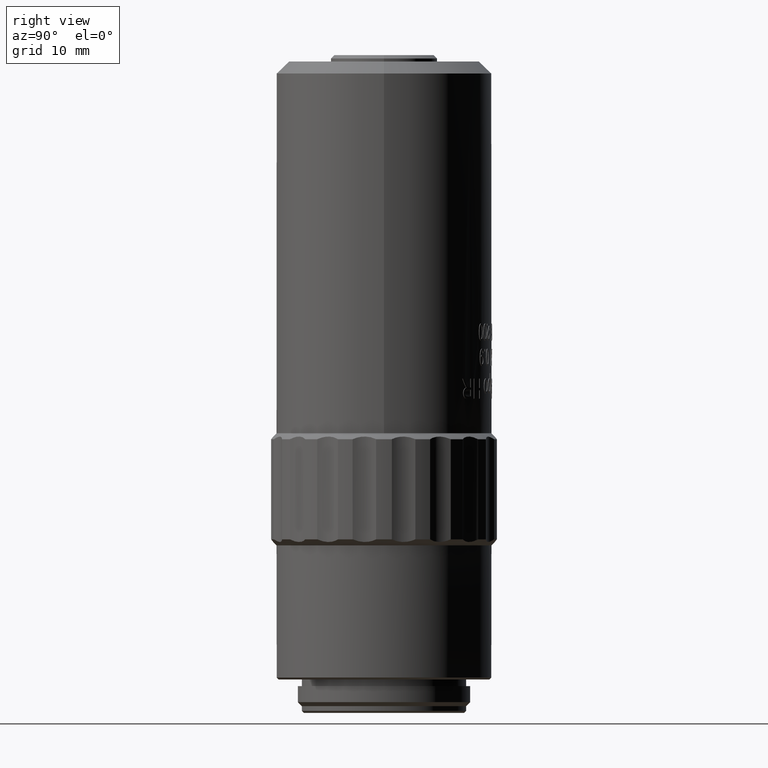
[diagram: clean part render]
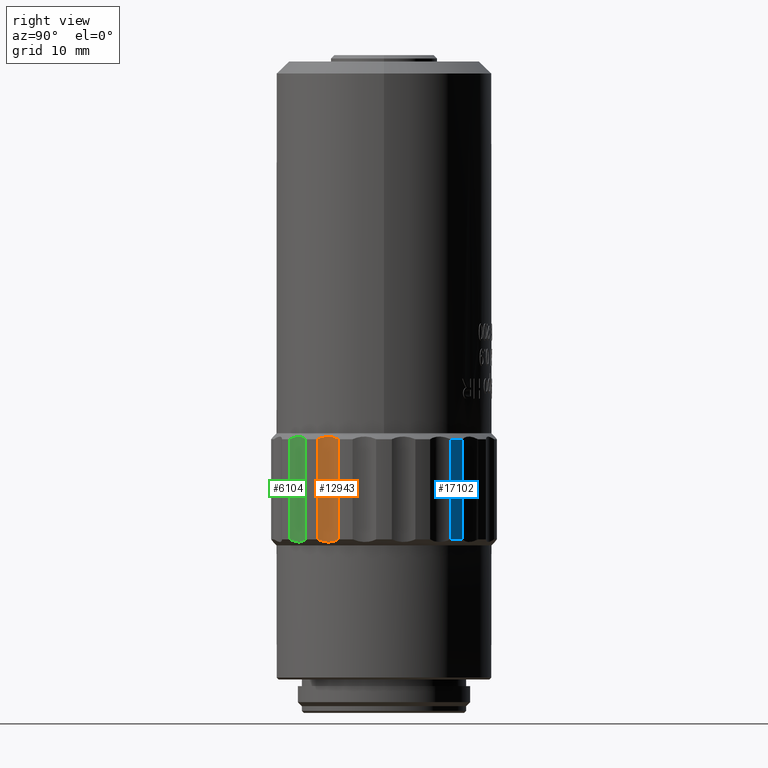
[diagram: same view with three faces highlighted in distinct colors, each labeled with its STEP entity id]
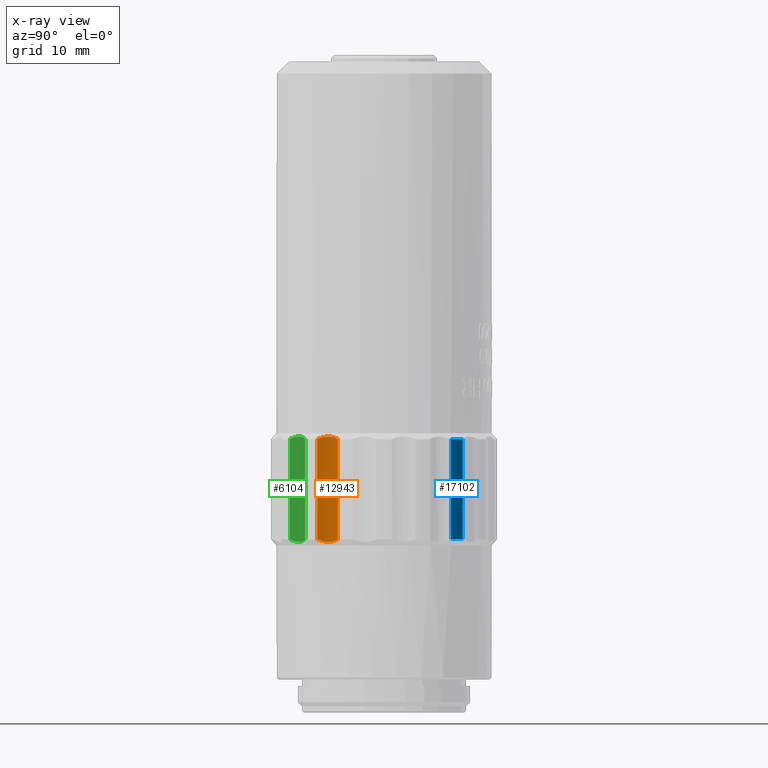
[diagram: x-ray of the same camera — body ghosted, the three highlighted faces saturated]
A machine part, right view with three faces highlighted in distinct colors.
The next image is the same camera in x-ray (body ghosted, the three faces saturated) — at least one of them is partly hidden behind the body in this view.
Their STEP definitions:

[orange] entity #12943 — the highlighted cylindrical surface (edge-blend (fillet) strip) has radius 5.4 mm, axis along (-0, 0, 1).
#824 = CARTESIAN_POINT ( 'NONE',  ( 19.05255888325774900, -10.99999999999982200, 21.34999999999996600 ) ) ;
#1400 = CARTESIAN_POINT ( 'NONE',  ( 14.53853958338843100, -8.032198147968669500, 41.39092293361600400 ) ) ;
#1597 = EDGE_CURVE ( 'NONE', #29060, #6802, #16267, .T. ) ;
#3730 = CARTESIAN_POINT ( 'NONE',  ( 13.87611108463110200, -9.432240277600202600, 25.77572455382300000 ) ) ;
#4149 = CARTESIAN_POINT ( 'NONE',  ( 14.22132855150395200, -8.567687747968626900, 41.40016476786554000 ) ) ;
#4189 = EDGE_CURVE ( 'NONE', #29060, #22720, #29690, .T. ) ;
#4195 = CARTESIAN_POINT ( 'NONE',  ( 14.29716043904604900, -8.436717341132732500, 25.60008324582645400 ) ) ;
#4993 = EDGE_CURVE ( 'NONE', #20641, #22720, #26941, .T. ) ;
#5141 = CARTESIAN_POINT ( 'NONE',  ( 13.74534270300631200, -10.00327716185606700, 40.99999999999999300 ) ) ;
#6802 = VERTEX_POINT ( 'NONE', #5141 ) ;
#8037 = CARTESIAN_POINT ( 'NONE',  ( 15.53576349476733600, -6.902177383598211900, 40.99999999999999300 ) ) ;
#8082 = CARTESIAN_POINT ( 'NONE',  ( 15.53576349476733600, -6.902177383598209200, 59.94999999999998200 ) ) ;
#9334 = CARTESIAN_POINT ( 'NONE',  ( 15.10404956711057200, -7.303743748790553900, 25.77464448674618000 ) ) ;
#10442 = DIRECTION ( 'NONE',  ( -0.0000000000000000000, 0.0000000000000000000, 1.000000000000000000 ) ) ;
#10860 = DIRECTION ( 'NONE',  ( 0.0000000000000000000, -0.0000000000000000000, -1.000000000000000000 ) ) ;
#11537 = ORIENTED_EDGE ( 'NONE', *, *, #4189, .T. ) ;
#12010 = CARTESIAN_POINT ( 'NONE',  ( 15.53576349476733600, -6.902177383598209200, 25.99999999999999600 ) ) ;
#12119 = EDGE_CURVE ( 'NONE', #20641, #6802, #34086, .T. ) ;
#12204 = CARTESIAN_POINT ( 'NONE',  ( 14.81237199277138600, -7.652734590218446300, 41.32821123978749300 ) ) ;
#12943 = ADVANCED_FACE ( 'NONE', ( #32866 ), #21685, .F. ) ;
#14256 = AXIS2_PLACEMENT_3D ( 'NONE', #824, #17541, #33872 ) ;
#14813 = CARTESIAN_POINT ( 'NONE',  ( 14.53049951718564100, -8.032187927182796700, 25.59983523213446300 ) ) ;
#14999 = CARTESIAN_POINT ( 'NONE',  ( 14.71694644180612200, -7.777162301628694200, 41.35521502908601800 ) ) ;
#16267 = LINE ( 'NONE', #21386, #29588 ) ;
#16657 = VECTOR ( 'NONE', #10860, 1000.000000000000000 ) ;
#17541 = DIRECTION ( 'NONE',  ( -0.0000000000000000000, 0.0000000000000000000, 1.000000000000000000 ) ) ;
#17764 = EDGE_LOOP ( 'NONE', ( #11537, #21959, #19623, #31390 ) ) ;
#17869 = CARTESIAN_POINT ( 'NONE',  ( 15.53576349476733600, -6.902177383598211900, 40.99999999999999300 ) ) ;
#19273 = CARTESIAN_POINT ( 'NONE',  ( 13.74534270300631200, -10.00327716185606700, 25.99999999999999600 ) ) ;
#19623 = ORIENTED_EDGE ( 'NONE', *, *, #12119, .T. ) ;
#20535 = CARTESIAN_POINT ( 'NONE',  ( 14.22535743606556300, -8.574645539155415700, 25.60907706638399600 ) ) ;
#20608 = CARTESIAN_POINT ( 'NONE',  ( 14.45499176149283100, -8.163345471629128300, 41.39991675417354600 ) ) ;
#20641 = VERTEX_POINT ( 'NONE', #8037 ) ;
#21386 = CARTESIAN_POINT ( 'NONE',  ( 13.74534270300631200, -10.00327716185606700, 59.94999999999998200 ) ) ;
#21685 = CYLINDRICAL_SURFACE ( 'NONE', #14256, 5.400000000000002100 ) ;
#21959 = ORIENTED_EDGE ( 'NONE', *, *, #4993, .F. ) ;
#22720 = VERTEX_POINT ( 'NONE', #29746 ) ;
#23066 = CARTESIAN_POINT ( 'NONE',  ( 14.71292823887368200, -7.771898086393733300, 25.63683770464000500 ) ) ;
#23421 = CARTESIAN_POINT ( 'NONE',  ( 14.03364855993493300, -9.001523140935669100, 25.67178876021248600 ) ) ;
#23493 = CARTESIAN_POINT ( 'NONE',  ( 13.74534270300631200, -10.00327716185606700, 40.99999999999999300 ) ) ;
#26941 = LINE ( 'NONE', #8082, #16657 ) ;
#28500 = CARTESIAN_POINT ( 'NONE',  ( 13.74534270300631200, -10.00327716185606700, 25.99999999999999600 ) ) ;
#28614 = CARTESIAN_POINT ( 'NONE',  ( 13.79889855136990600, -9.718110158447485600, 25.87550228923504400 ) ) ;
#28681 = CARTESIAN_POINT ( 'NONE',  ( 15.10661523731624800, -7.300944566224999700, 41.22427544617698900 ) ) ;
#28840 = CARTESIAN_POINT ( 'NONE',  ( 15.31542726724263500, -7.091272300926931400, 25.87541618479921000 ) ) ;
#28916 = CARTESIAN_POINT ( 'NONE',  ( 14.08712529787763900, -8.855820575724923300, 41.36316229535999900 ) ) ;
#29060 = VERTEX_POINT ( 'NONE', #19273 ) ;
#29588 = VECTOR ( 'NONE', #10442, 1000.000000000000000 ) ;
#29690 = B_SPLINE_CURVE_WITH_KNOTS ( 'NONE', 3,
 ( #28500, #28614, #3730, #23421, #33902, #20535, #4195, #14813, #23066, #9334, #28840, #12010 ),
 .UNSPECIFIED., .F., .F.,
 ( 4, 2, 2, 2, 2, 4 ),
 ( 5.014949643661571300E-007, 0.0009371267741273206600, 0.001405439413708796700, 0.001873752053290272800, 0.002810377332453224900, 0.003747002611616177100 ),
 .UNSPECIFIED. ) ;
#29746 = CARTESIAN_POINT ( 'NONE',  ( 15.53576349476733600, -6.902177383598209200, 25.99999999999999600 ) ) ;
#31079 = CARTESIAN_POINT ( 'NONE',  ( 13.87725241273986900, -9.428618750741579300, 41.22535551325379500 ) ) ;
#31390 = ORIENTED_EDGE ( 'NONE', *, *, #1597, .F. ) ;
#32866 = FACE_OUTER_BOUND ( 'NONE', #17764, .T. ) ;
#33852 = CARTESIAN_POINT ( 'NONE',  ( 13.79893559137714700, -9.717912932781285200, 41.12458381520075800 ) ) ;
#33872 = DIRECTION ( 'NONE',  ( 1.000000000000000000, 0.0000000000000000000, 0.0000000000000000000 ) ) ;
#33902 = CARTESIAN_POINT ( 'NONE',  ( 14.09369334346833100, -8.856668333924503100, 25.64478497091397800 ) ) ;
#34086 = B_SPLINE_CURVE_WITH_KNOTS ( 'NONE', 3,
 ( #17869, #34096, #28681, #12204, #14999, #1400, #20608, #4149, #28916, #31079, #33852, #23493 ),
 .UNSPECIFIED., .F., .F.,
 ( 4, 2, 2, 2, 2, 4 ),
 ( 5.014949643708694900E-007, 0.0009371267741273243500, 0.001405439413708801000, 0.001873752053290280000, 0.002810377332453232700, 0.003747002611616186200 ),
 .UNSPECIFIED. ) ;
#34096 = CARTESIAN_POINT ( 'NONE',  ( 15.31557954967622100, -7.091141610506600300, 41.12449771076494200 ) ) ;

[blue] entity #17102 — the highlighted cylindrical surface (partial cylindrical patch) has radius 17 mm, axis along (-0, -0, -1).
#239 = CARTESIAN_POINT ( 'NONE',  ( 13.74534270300610600, 10.00327716185635300, 59.94999999999998200 ) ) ;
#1870 = ORIENTED_EDGE ( 'NONE', *, *, #6255, .T. ) ;
#2131 = CARTESIAN_POINT ( 'NONE',  ( 13.74534270300610600, 10.00327716185635300, 40.99999999999999300 ) ) ;
#2148 = CARTESIAN_POINT ( 'NONE',  ( 0.0000000000000000000, 0.0000000000000000000, 40.99999999999999300 ) ) ;
#3155 = DIRECTION ( 'NONE',  ( -1.000000000000000000, 0.0000000000000000000, 0.0000000000000000000 ) ) ;
#3288 = CIRCLE ( 'NONE', #7932, 17.00000000000000000 ) ;
#3351 = CARTESIAN_POINT ( 'NONE',  ( 12.23815861631026000, 11.79946921187690900, 59.94999999999998200 ) ) ;
#5775 = CARTESIAN_POINT ( 'NONE',  ( 0.0000000000000000000, 0.0000000000000000000, 25.99999999999999600 ) ) ;
#6255 = EDGE_CURVE ( 'NONE', #23611, #29976, #3288, .T. ) ;
#6601 = CARTESIAN_POINT ( 'NONE',  ( 12.23815861631025600, 11.79946921187691100, 40.99999999999999300 ) ) ;
#7767 = DIRECTION ( 'NONE',  ( -1.000000000000000000, 0.0000000000000000000, 0.0000000000000000000 ) ) ;
#7808 = ORIENTED_EDGE ( 'NONE', *, *, #30023, .T. ) ;
#7932 = AXIS2_PLACEMENT_3D ( 'NONE', #5775, #22235, #3155 ) ;
#9699 = VECTOR ( 'NONE', #25812, 1000.000000000000000 ) ;
#9773 = ORIENTED_EDGE ( 'NONE', *, *, #10997, .T. ) ;
#10997 = EDGE_CURVE ( 'NONE', #24049, #29233, #29445, .T. ) ;
#12377 = CARTESIAN_POINT ( 'NONE',  ( 12.23815861631026000, 11.79946921187690900, 25.99999999999999600 ) ) ;
#12666 = CARTESIAN_POINT ( 'NONE',  ( 13.74534270300610600, 10.00327716185635300, 25.99999999999999600 ) ) ;
#14465 = AXIS2_PLACEMENT_3D ( 'NONE', #2148, #35191, #21473 ) ;
#17102 = ADVANCED_FACE ( 'NONE', ( #19495 ), #30252, .T. ) ;
#17147 = VECTOR ( 'NONE', #22560, 1000.000000000000000 ) ;
#17601 = EDGE_LOOP ( 'NONE', ( #9773, #7808, #1870, #18686 ) ) ;
#18686 = ORIENTED_EDGE ( 'NONE', *, *, #25399, .T. ) ;
#19495 = FACE_OUTER_BOUND ( 'NONE', #17601, .T. ) ;
#21473 = DIRECTION ( 'NONE',  ( 1.000000000000000000, 8.881784197001252300E-015, 0.0000000000000000000 ) ) ;
#22235 = DIRECTION ( 'NONE',  ( 0.0000000000000000000, 0.0000000000000000000, 1.000000000000000000 ) ) ;
#22560 = DIRECTION ( 'NONE',  ( -0.0000000000000000000, -0.0000000000000000000, 1.000000000000000000 ) ) ;
#23131 = LINE ( 'NONE', #3351, #17147 ) ;
#23611 = VERTEX_POINT ( 'NONE', #12666 ) ;
#24049 = VERTEX_POINT ( 'NONE', #6601 ) ;
#25399 = EDGE_CURVE ( 'NONE', #29976, #24049, #23131, .T. ) ;
#25812 = DIRECTION ( 'NONE',  ( 0.0000000000000000000, 0.0000000000000000000, -1.000000000000000000 ) ) ;
#29233 = VERTEX_POINT ( 'NONE', #2131 ) ;
#29445 = CIRCLE ( 'NONE', #14465, 17.00000000000000000 ) ;
#29666 = CARTESIAN_POINT ( 'NONE',  ( 0.0000000000000000000, 0.0000000000000000000, 98.54999999999999700 ) ) ;
#29976 = VERTEX_POINT ( 'NONE', #12377 ) ;
#30023 = EDGE_CURVE ( 'NONE', #29233, #23611, #32947, .T. ) ;
#30252 = CYLINDRICAL_SURFACE ( 'NONE', #34335, 17.00000000000000000 ) ;
#32947 = LINE ( 'NONE', #239, #9699 ) ;
#34335 = AXIS2_PLACEMENT_3D ( 'NONE', #29666, #35194, #7767 ) ;
#35191 = DIRECTION ( 'NONE',  ( 0.0000000000000000000, 0.0000000000000000000, -1.000000000000000000 ) ) ;
#35194 = DIRECTION ( 'NONE',  ( -0.0000000000000000000, -0.0000000000000000000, -1.000000000000000000 ) ) ;

[green] entity #6104 — the highlighted cylindrical surface (edge-blend (fillet) strip) has radius 5.4 mm, axis along (-0, 0, 1).
#478 = CARTESIAN_POINT ( 'NONE',  ( 10.10861375966149300, -13.25845536322185800, 25.67178876021249000 ) ) ;
#546 = EDGE_LOOP ( 'NONE', ( #20030, #15259, #9854, #19047 ) ) ;
#593 = CARTESIAN_POINT ( 'NONE',  ( 10.21458066151988900, -13.14287289545815300, 25.64478497091398500 ) ) ;
#1908 = VECTOR ( 'NONE', #22719, 1000.000000000000000 ) ;
#3141 = CARTESIAN_POINT ( 'NONE',  ( 10.54940888855141300, -12.81783789163156400, 25.60008324582645400 ) ) ;
#3361 = CARTESIAN_POINT ( 'NONE',  ( 11.16748439880132100, -12.33531310628418100, 25.63683770464000100 ) ) ;
#3594 = CARTESIAN_POINT ( 'NONE',  ( 9.813263019806420600, -13.60931608830897900, 25.77572455382300000 ) ) ;
#4371 = CARTESIAN_POINT ( 'NONE',  ( 9.495074819564051100, -14.10118981401501300, 40.99999999999999300 ) ) ;
#4478 = CARTESIAN_POINT ( 'NONE',  ( 12.23815861631050200, -11.79946921187665500, 40.99999999999999300 ) ) ;
#4589 = CARTESIAN_POINT ( 'NONE',  ( 10.43335570609039900, -12.91497378343077300, 41.40016476786554000 ) ) ;
#4954 = CARTESIAN_POINT ( 'NONE',  ( 11.96662381592222400, -11.90173015703691000, 41.12449771076494900 ) ) ;
#5408 = CARTESIAN_POINT ( 'NONE',  ( 9.495074819564052900, -14.10118981401501200, 25.99999999999999600 ) ) ;
#5887 = VERTEX_POINT ( 'NONE', #16349 ) ;
#5993 = CARTESIAN_POINT ( 'NONE',  ( 10.43476191444400700, -12.92288992814116900, 25.60907706638401000 ) ) ;
#6104 = ADVANCED_FACE ( 'NONE', ( #25624 ), #13627, .F. ) ;
#6111 = CARTESIAN_POINT ( 'NONE',  ( 12.23815861631050000, -11.79946921187665500, 25.99999999999999600 ) ) ;
#6998 = VECTOR ( 'NONE', #12906, 1000.000000000000000 ) ;
#7106 = CARTESIAN_POINT ( 'NONE',  ( 9.643035975820907900, -13.85136500107901500, 41.12458381520077200 ) ) ;
#8994 = CARTESIAN_POINT ( 'NONE',  ( 9.495074819564052900, -14.10118981401501200, 59.94999999999998200 ) ) ;
#9623 = CARTESIAN_POINT ( 'NONE',  ( 9.495074819564052900, -14.10118981401501200, 25.99999999999999600 ) ) ;
#9854 = ORIENTED_EDGE ( 'NONE', *, *, #15386, .T. ) ;
#9869 = CARTESIAN_POINT ( 'NONE',  ( 10.79122050357235800, -12.61493385465310100, 41.39991675417353200 ) ) ;
#9930 = VERTEX_POINT ( 'NONE', #4371 ) ;
#10097 = CARTESIAN_POINT ( 'NONE',  ( 9.495074819564051100, -14.10118981401501300, 40.99999999999999300 ) ) ;
#10846 = B_SPLINE_CURVE_WITH_KNOTS ( 'NONE', 3,
 ( #4478, #4954, #21049, #26363, #29126, #34892, #9869, #4589, #21168, #32098, #7106, #10097 ),
 .UNSPECIFIED., .F., .F.,
 ( 4, 2, 2, 2, 2, 4 ),
 ( 5.014949643682318300E-007, 0.0009371267741273233700, 0.001405439413708799100, 0.001873752053290274500, 0.002810377332453225700, 0.003747002611616177100 ),
 .UNSPECIFIED. ) ;
#12906 = DIRECTION ( 'NONE',  ( 0.0000000000000000000, -0.0000000000000000000, -1.000000000000000000 ) ) ;
#13277 = VERTEX_POINT ( 'NONE', #9623 ) ;
#13506 = CARTESIAN_POINT ( 'NONE',  ( 14.14132741310400500, -16.85297774861739800, 21.34999999999996600 ) ) ;
#13577 = EDGE_CURVE ( 'NONE', #13277, #9930, #17408, .T. ) ;
#13627 = CYLINDRICAL_SURFACE ( 'NONE', #34902, 5.400000000000002100 ) ;
#13688 = VERTEX_POINT ( 'NONE', #31356 ) ;
#14764 = EDGE_CURVE ( 'NONE', #13277, #13688, #20321, .T. ) ;
#15259 = ORIENTED_EDGE ( 'NONE', *, *, #15438, .F. ) ;
#15386 = EDGE_CURVE ( 'NONE', #5887, #9930, #10846, .T. ) ;
#15438 = EDGE_CURVE ( 'NONE', #5887, #13688, #21175, .T. ) ;
#16026 = DIRECTION ( 'NONE',  ( -0.0000000000000000000, 0.0000000000000000000, 1.000000000000000000 ) ) ;
#16349 = CARTESIAN_POINT ( 'NONE',  ( 12.23815861631050200, -11.79946921187665500, 40.99999999999999300 ) ) ;
#17086 = CARTESIAN_POINT ( 'NONE',  ( 9.642933714448799900, -13.85153766415358100, 25.87550228923504000 ) ) ;
#17408 = LINE ( 'NONE', #8994, #1908 ) ;
#19047 = ORIENTED_EDGE ( 'NONE', *, *, #13577, .F. ) ;
#20030 = ORIENTED_EDGE ( 'NONE', *, *, #14764, .T. ) ;
#20321 = B_SPLINE_CURVE_WITH_KNOTS ( 'NONE', 3,
 ( #5408, #17086, #3594, #478, #593, #5993, #3141, #25580, #3361, #22343, #25229, #6111 ),
 .UNSPECIFIED., .F., .F.,
 ( 4, 2, 2, 2, 2, 4 ),
 ( 5.014949643654297400E-007, 0.0009371267741273122100, 0.001405439413708786900, 0.001873752053290261500, 0.002810377332453214500, 0.003747002611616167600 ),
 .UNSPECIFIED. ) ;
#21049 = CARTESIAN_POINT ( 'NONE',  ( 11.69850475660499500, -12.02741044228125500, 41.22427544617698200 ) ) ;
#21168 = CARTESIAN_POINT ( 'NONE',  ( 10.20869866792625800, -13.13982985943950000, 41.36316229535999900 ) ) ;
#21175 = LINE ( 'NONE', #23705, #6998 ) ;
#22343 = CARTESIAN_POINT ( 'NONE',  ( 11.69513643842309100, -12.02916330259086700, 25.77464448674619000 ) ) ;
#22719 = DIRECTION ( 'NONE',  ( -0.0000000000000000000, 0.0000000000000000000, 1.000000000000000000 ) ) ;
#23705 = CARTESIAN_POINT ( 'NONE',  ( 12.23815861631050000, -11.79946921187665500, 59.94999999999998200 ) ) ;
#25229 = CARTESIAN_POINT ( 'NONE',  ( 11.96643601848681000, -11.90180088220074600, 25.87541618479922100 ) ) ;
#25580 = CARTESIAN_POINT ( 'NONE',  ( 10.90703310655877600, -12.51751125140073900, 25.59983523213447000 ) ) ;
#25624 = FACE_OUTER_BOUND ( 'NONE', #546, .T. ) ;
#26363 = CARTESIAN_POINT ( 'NONE',  ( 11.30168727656330900, -12.25734781522214700, 41.32821123978749300 ) ) ;
#29126 = CARTESIAN_POINT ( 'NONE',  ( 11.16945980679660400, -12.34163415683757100, 41.35521502908602500 ) ) ;
#31356 = CARTESIAN_POINT ( 'NONE',  ( 12.23815861631050000, -11.79946921187665500, 25.99999999999999600 ) ) ;
#32098 = CARTESIAN_POINT ( 'NONE',  ( 9.815574152543368000, -13.60630332344729400, 41.22535551325381000 ) ) ;
#32443 = DIRECTION ( 'NONE',  ( 1.000000000000000000, 0.0000000000000000000, 0.0000000000000000000 ) ) ;
#34892 = CARTESIAN_POINT ( 'NONE',  ( 10.91458480172552100, -12.52027072039283200, 41.39092293361599700 ) ) ;
#34902 = AXIS2_PLACEMENT_3D ( 'NONE', #13506, #16026, #32443 ) ;